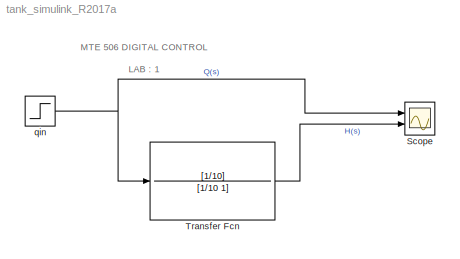
MODEL tank_simulink_R2017a
KIND model
BLOCK [Scope] Scope
  Floating = off
  NumInputPorts = 2
  Ports = [2]
  SID = 6
  ScopeSpecificationString = Simulink.scopes.TimeScopeBlockCfg('CurrentConfiguration', extmgr.ConfigurationSet(extmgr.Configuration('Core','General UI',true),extmgr.Configuration('Core','Source UI',true),extmgr.Configuration('Sources','WiredSimulink',true),extmgr.Configuration('Visuals','Time Domain',true,'SerializedDisplays',{struct('MinYLimReal','-0.05','MaxYLimReal','0.45','YLabelReal','','MinYLimMag','0.00000','MaxYLimMag...<+1351ch>
BLOCK [TransferFcn] Transfer Fcn
  Denominator = [1/10 1]
  Numerator = [1/10]
  SID = 4
BLOCK [Step] qin
  After = 0.4
  SID = 2
  SampleTime = 100E-3
  Time = 0
ANNOTATION (root): \n \n MTE 506 DIGITAL CONTROL \n LAB : 1 \n EXERCISE : 1
LINE Transfer Fcn:1 -> Scope:2
NET qin:1 -> Scope:1, Transfer Fcn:1
note: NET lines group one-source signal fan-out (src -> all destinations, sorted); 1:1 wires keep LINE
